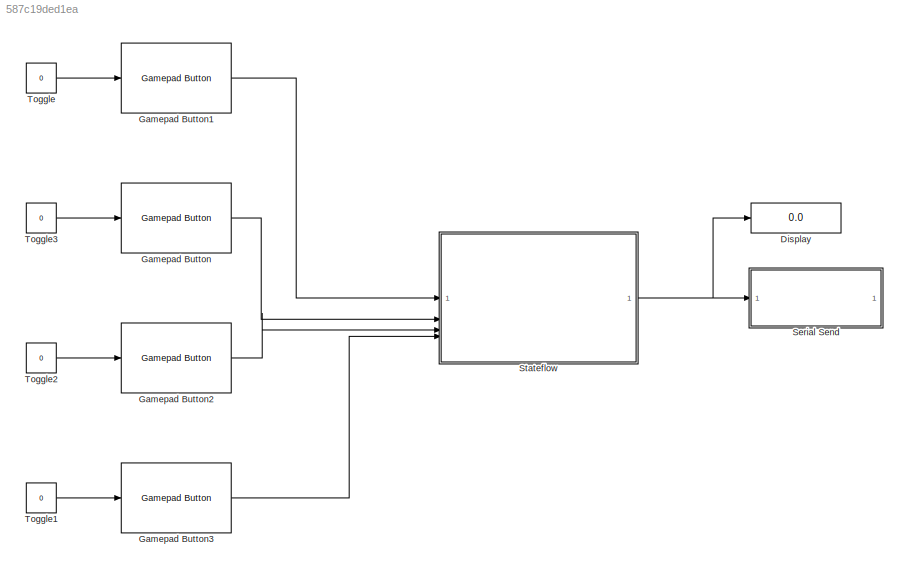
MODEL slx_587c19ded1ea
KIND model
CONFIG AbsTol = auto
CONFIG EnableMultiTasking = on
CONFIG FixedStep = auto
CONFIG MaxStep = auto
CONFIG MinStep = auto
CONFIG RelTol = 1e-3
CONFIG SampleTimeConstraint = Unconstrained
CONFIG SolverName = FixedStepAuto
CONFIG StartTime = 0.0
CONFIG StopTime = inf
BLOCK [Display] Display
  Decimation = 1
BLOCK [Reference] Gamepad Button  REF=vexarmcortexlib/Gamepad/Gamepad Button
  SourceBlock = vexarmcortexlib/Gamepad/Gamepad Button
  SourceType = Gamepad Button
BLOCK [Reference] Gamepad Button1  REF=vexarmcortexlib/Gamepad/Gamepad Button
  SourceBlock = vexarmcortexlib/Gamepad/Gamepad Button
  SourceType = Gamepad Button
BLOCK [Reference] Gamepad Button2  REF=vexarmcortexlib/Gamepad/Gamepad Button
  SourceBlock = vexarmcortexlib/Gamepad/Gamepad Button
  SourceType = Gamepad Button
BLOCK [Reference] Gamepad Button3  REF=vexarmcortexlib/Gamepad/Gamepad Button
  SourceBlock = vexarmcortexlib/Gamepad/Gamepad Button
  SourceType = Gamepad Button
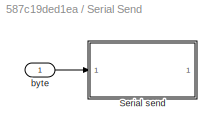
BLOCK [SubSystem] Serial Send
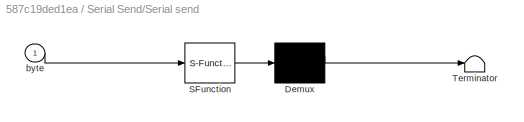
BLOCK [SubSystem] Serial Send/Serial send
  ErrorFcn = Stateflow.Translate.translate
  PermitHierarchicalResolution = ExplicitOnly
  SFBlockType = MATLAB Function
  TreatAsAtomicUnit = on
BLOCK [Demux] Serial Send/Serial send/ Demux 
  Outputs = 1
BLOCK [S-Function] Serial Send/Serial send/ SFunction 
  EnableBusSupport = on
  FunctionName = sf_sfun
  PortCounts = [1 1]
  SFcnIsStateOwnerBlock = off
  SFunctionDeploymentMode = off
  Tag = Stateflow S-Function 3
BLOCK [Terminator] Serial Send/Serial send/ Terminator 
BLOCK [Inport] Serial Send/Serial send/byte
BLOCK [Inport] Serial Send/byte
  OutDataTypeStr = uint8
  PortDimensions = [1 1]
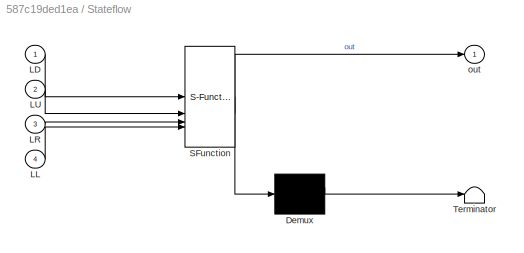
BLOCK [SubSystem] Stateflow
  ErrorFcn = Stateflow.Translate.translate
  PermitHierarchicalResolution = ExplicitOnly
  SFBlockType = Chart
  TreatAsAtomicUnit = on
BLOCK [Demux] Stateflow/ Demux 
  Outputs = 1
BLOCK [S-Function] Stateflow/ SFunction 
  EnableBusSupport = on
  FunctionName = sf_sfun
  PortCounts = [4 2]
  SFcnIsStateOwnerBlock = off
  SFunctionDeploymentMode = off
  Tag = Stateflow S-Function 1
BLOCK [Terminator] Stateflow/ Terminator 
BLOCK [Inport] Stateflow/LD
BLOCK [Inport] Stateflow/LL
  Port = 4
BLOCK [Inport] Stateflow/LR
  Port = 3
BLOCK [Inport] Stateflow/LU
  Port = 2
BLOCK [Outport] Stateflow/out
BLOCK [Constant] Toggle
  OpenFcn = if strcmp('0',get_param(gcb, 'Value'))                        set_param(gcb, 'Value', '1');\nelse                                                                                       \n            set_param(gcb, 'Value', '0');                                                  \nend  <repeated x4 — deduplicated; at blocks: Toggle, Toggle1, Toggle2, Toggle3>
  Value = 0
BLOCK [Constant] Toggle1
  Value = 0
BLOCK [Constant] Toggle2
  Value = 0
BLOCK [Constant] Toggle3
  Value = 0
LINE Gamepad Button1:1 -> Stateflow:1
LINE Gamepad Button2:1 -> Stateflow:3
LINE Gamepad Button3:1 -> Stateflow:4
LINE Gamepad Button:1 -> Stateflow:2
LINE Serial Send/byte:1 -> Serial Send/Serial send:1
NET Stateflow:1 -> Display:1, Serial Send:1
LINE Toggle1:1 -> Gamepad Button3:1
LINE Toggle2:1 -> Gamepad Button2:1
LINE Toggle3:1 -> Gamepad Button:1
LINE Toggle:1 -> Gamepad Button1:1
note: NET lines group one-source signal fan-out (src -> all destinations, sorted); 1:1 wires keep LINE
CHART Stateflow states=11 transitions=15
  STATE_LABEL 'Speed Adjustments'
  STATE_LABEL 'speedHigh\nentry:\nout = 0xC3;'
  STATE_LABEL 'speedHigh\nentry:\nout = 0xC3;'
  STATE_LABEL 'Squeaky Movements'
  STATE_LABEL 'LiftMid\nentry:\nout = 0x5A;\n'
  STATE_LABEL 'driveMid\nentry:\nout = 0x33;'
  STATE_LABEL 'rotateMid\nentry:\nout = 0x66;'
  STATE_LABEL 'LiftMid\nentry:\nout = 0x5A;\n'
  STATE_LABEL 'driveMid\nentry:\nout = 0x33;'
  STATE_LABEL 'rotateMid\nentry:\nout = 0x66;'
  STATE_LABEL 'Rotational Adjustments'
  STATE_LABEL 'rotLow\nentry:\nout = 0x69;'
  STATE_LABEL 'RotHigh\nentry:\nout = 0x0F;'
  STATE_LABEL 'rotLow\nentry:\nout = 0x69;'
  STATE_LABEL 'RotHigh\nentry:\nout = 0x0F;'
  STATE_LABEL 'Default_Flash\nentry:\nout = 0xF0;\n'
  STATE_LABEL 'MasterFeildReset\nentry:\nout = 0xAA;\n'
CHART Serial Send/Serial send states=1 transitions=1
  STATE_LABEL 'eML_blk_kernel()'
  STATE_LABEL "SCRIPT:\nfunction fcn(byte)\n% Serial send single byte\n%#codegen\n\n% Config\nport = 'uart1';\nbaud = uint32(600);\n\npersistent isFirstRun\n\nif coder.target('Rtw')\n    coder.cinclude('API.h');\n    coder.cinclude('string.h');\n    file = coder.opaque('FILE *', port,'HeaderFile','API.h');\n\n    if isempty(isFirstRun)\n        % first time setup\n        isFirstRun = false;\n\n        flags = coder.opaque('uint16'...<+126ch>"
CHART  states=0 transitions=0
CHART  states=0 transitions=0
